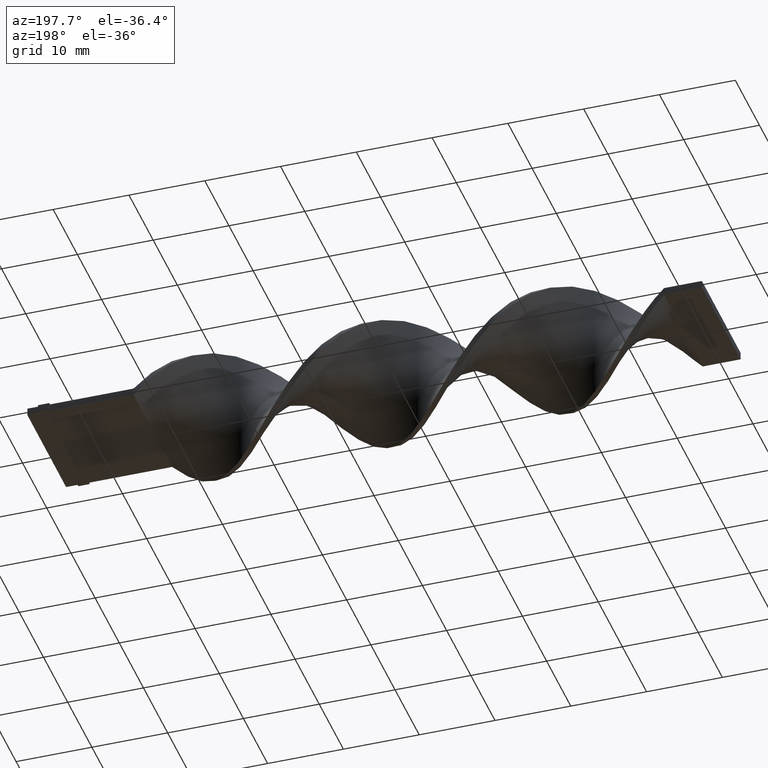
[diagram: clean part render]
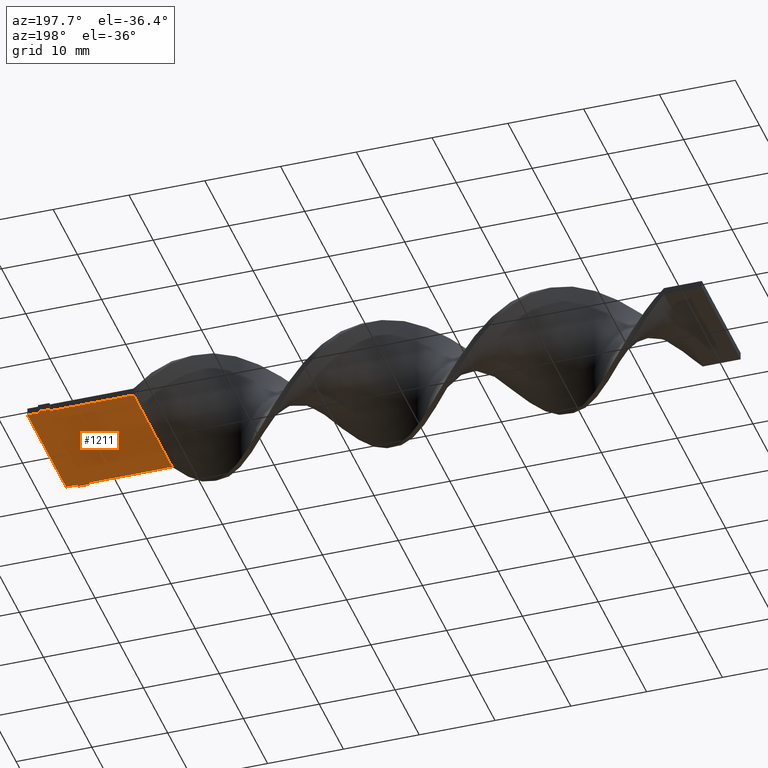
[diagram: same view with one face highlighted and labeled with its STEP entity id]
A machine part, auxiliary view. The second image highlights one B-rep face of the part: STEP entity #1211.
In plain terms, the highlighted planar face has unit normal (0, 0, 1).
Its self-contained STEP definition (entity closure, byte-faithful):
#34 = EDGE_CURVE ( 'NONE', #1388, #1496, #285, .T. ) ;
#38 = DIRECTION ( 'NONE',  ( -1.000000000000000000, 0.000000000000000000, 0.000000000000000000 ) ) ;
#94 = AXIS2_PLACEMENT_3D ( 'NONE', #1433, #436, #430 ) ;
#111 = CARTESIAN_POINT ( 'NONE',  ( -1.499999999999993783, -8.300000000000000711, -0.5000000000000000000 ) ) ;
#115 = VERTEX_POINT ( 'NONE', #1442 ) ;
#117 = VECTOR ( 'NONE', #1589, 1000.000000000000000 ) ;
#125 = CARTESIAN_POINT ( 'NONE',  ( -13.99999999999999822, 7.999999999999998224, -0.5000000000000000000 ) ) ;
#126 = ORIENTED_EDGE ( 'NONE', *, *, #1379, .F. ) ;
#132 = CARTESIAN_POINT ( 'NONE',  ( -2.999999999999995115, 8.000000000000000000, -0.5000000000000000000 ) ) ;
#133 = CARTESIAN_POINT ( 'NONE',  ( -1.499999999999995781, 8.000000000000000000, -0.5000000000000000000 ) ) ;
#138 = VERTEX_POINT ( 'NONE', #1112 ) ;
#151 = CARTESIAN_POINT ( 'NONE',  ( -13.99999999999999645, -8.000000000000001776, -0.5000000000000000000 ) ) ;
#165 = CARTESIAN_POINT ( 'NONE',  ( -1.499999999999995781, 8.000000000000000000, -0.5000000000000000000 ) ) ;
#196 = ORIENTED_EDGE ( 'NONE', *, *, #672, .F. ) ;
#215 = ORIENTED_EDGE ( 'NONE', *, *, #629, .F. ) ;
#217 = VECTOR ( 'NONE', #1300, 1000.000000000000000 ) ;
#241 = EDGE_LOOP ( 'NONE', ( #1030, #1404, #1583, #531, #1321, #215, #1002, #126, #196, #567, #251, #824 ) ) ;
#251 = ORIENTED_EDGE ( 'NONE', *, *, #34, .F. ) ;
#253 = VERTEX_POINT ( 'NONE', #613 ) ;
#269 = EDGE_CURVE ( 'NONE', #253, #1388, #856, .T. ) ;
#285 = LINE ( 'NONE', #543, #1214 ) ;
#290 = EDGE_CURVE ( 'NONE', #115, #450, #329, .T. ) ;
#305 = PLANE ( 'NONE',  #94 ) ;
#325 = VECTOR ( 'NONE', #605, 1000.000000000000000 ) ;
#329 = LINE ( 'NONE', #1329, #1269 ) ;
#379 = CARTESIAN_POINT ( 'NONE',  ( -1.499999999999993783, -8.000000000000000000, -0.5000000000000000000 ) ) ;
#404 = DIRECTION ( 'NONE',  ( 0.000000000000000000, 1.000000000000000000, 0.000000000000000000 ) ) ;
#409 = DIRECTION ( 'NONE',  ( -1.000000000000000000, -1.577021341797097067E-16, 0.000000000000000000 ) ) ;
#412 = LINE ( 'NONE', #379, #463 ) ;
#426 = DIRECTION ( 'NONE',  ( -1.000000000000000000, 0.000000000000000000, 0.000000000000000000 ) ) ;
#430 = DIRECTION ( 'NONE',  ( 1.000000000000000000, 0.000000000000000000, -0.000000000000000000 ) ) ;
#436 = DIRECTION ( 'NONE',  ( 0.000000000000000000, 0.000000000000000000, 1.000000000000000000 ) ) ;
#450 = VERTEX_POINT ( 'NONE', #864 ) ;
#463 = VECTOR ( 'NONE', #1266, 1000.000000000000000 ) ;
#470 = EDGE_CURVE ( 'NONE', #743, #1471, #412, .T. ) ;
#479 = CARTESIAN_POINT ( 'NONE',  ( -1.959434878635765526E-15, 8.000000000000000000, -0.5000000000000000000 ) ) ;
#510 = VECTOR ( 'NONE', #1473, 1000.000000000000000 ) ;
#515 = EDGE_CURVE ( 'NONE', #1471, #115, #1518, .T. ) ;
#531 = ORIENTED_EDGE ( 'NONE', *, *, #290, .T. ) ;
#533 = VERTEX_POINT ( 'NONE', #1213 ) ;
#543 = CARTESIAN_POINT ( 'NONE',  ( -1.959434878635765526E-15, 8.000000000000000000, -0.5000000000000000000 ) ) ;
#558 = EDGE_CURVE ( 'NONE', #533, #1265, #1598, .T. ) ;
#567 = ORIENTED_EDGE ( 'NONE', *, *, #1065, .F. ) ;
#604 = LINE ( 'NONE', #1111, #117 ) ;
#605 = DIRECTION ( 'NONE',  ( -1.224646799147353207E-16, 1.000000000000000000, 0.000000000000000000 ) ) ;
#613 = CARTESIAN_POINT ( 'NONE',  ( -3.851859888774471706E-31, -8.000000000000000000, -0.5000000000000000000 ) ) ;
#615 = CARTESIAN_POINT ( 'NONE',  ( -13.99999999999999822, 7.999999999999998224, -0.5000000000000000000 ) ) ;
#629 = EDGE_CURVE ( 'NONE', #1265, #1121, #1348, .T. ) ;
#635 = VECTOR ( 'NONE', #404, 1000.000000000000000 ) ;
#650 = CARTESIAN_POINT ( 'NONE',  ( -1.499999999999995781, 8.300000000000000711, -0.5000000000000000000 ) ) ;
#672 = EDGE_CURVE ( 'NONE', #731, #138, #604, .T. ) ;
#676 = LINE ( 'NONE', #1415, #217 ) ;
#722 = DIRECTION ( 'NONE',  ( -1.000000000000000000, -1.577021341797097067E-16, 0.000000000000000000 ) ) ;
#731 = VERTEX_POINT ( 'NONE', #650 ) ;
#743 = VERTEX_POINT ( 'NONE', #1516 ) ;
#824 = ORIENTED_EDGE ( 'NONE', *, *, #269, .F. ) ;
#856 = LINE ( 'NONE', #1224, #325 ) ;
#864 = CARTESIAN_POINT ( 'NONE',  ( -2.999999999999993339, -8.000000000000000000, -0.5000000000000000000 ) ) ;
#898 = CARTESIAN_POINT ( 'NONE',  ( -1.499999999999993783, -8.300000000000000711, -0.5000000000000000000 ) ) ;
#962 = LINE ( 'NONE', #1104, #510 ) ;
#965 = EDGE_CURVE ( 'NONE', #253, #743, #676, .T. ) ;
#1002 = ORIENTED_EDGE ( 'NONE', *, *, #558, .F. ) ;
#1030 = ORIENTED_EDGE ( 'NONE', *, *, #965, .T. ) ;
#1065 = EDGE_CURVE ( 'NONE', #1496, #731, #1498, .T. ) ;
#1082 = DIRECTION ( 'NONE',  ( 1.445602896647339706E-15, 1.000000000000000000, 0.000000000000000000 ) ) ;
#1104 = CARTESIAN_POINT ( 'NONE',  ( -2.999999999999995559, 8.300000000000000711, -0.5000000000000000000 ) ) ;
#1111 = CARTESIAN_POINT ( 'NONE',  ( -1.499999999999995781, 8.300000000000000711, -0.5000000000000000000 ) ) ;
#1112 = CARTESIAN_POINT ( 'NONE',  ( -2.999999999999995559, 8.300000000000000711, -0.5000000000000000000 ) ) ;
#1117 = VECTOR ( 'NONE', #38, 1000.000000000000000 ) ;
#1121 = VERTEX_POINT ( 'NONE', #151 ) ;
#1126 = DIRECTION ( 'NONE',  ( 1.084202172485504434E-16, -1.000000000000000000, 0.000000000000000000 ) ) ;
#1128 = LINE ( 'NONE', #1506, #1291 ) ;
#1164 = VECTOR ( 'NONE', #1126, 1000.000000000000000 ) ;
#1211 = ADVANCED_FACE ( 'NONE', ( #1428 ), #305, .F. ) ;
#1213 = CARTESIAN_POINT ( 'NONE',  ( -2.999999999999995115, 8.000000000000000000, -0.5000000000000000000 ) ) ;
#1214 = VECTOR ( 'NONE', #426, 1000.000000000000000 ) ;
#1224 = CARTESIAN_POINT ( 'NONE',  ( -3.851859888774471706E-31, -8.000000000000000000, -0.5000000000000000000 ) ) ;
#1265 = VERTEX_POINT ( 'NONE', #615 ) ;
#1266 = DIRECTION ( 'NONE',  ( 0.000000000000000000, -1.000000000000000000, 0.000000000000000000 ) ) ;
#1269 = VECTOR ( 'NONE', #1082, 1000.000000000000000 ) ;
#1291 = VECTOR ( 'NONE', #409, 1000.000000000000000 ) ;
#1300 = DIRECTION ( 'NONE',  ( -1.000000000000000000, 0.000000000000000000, 0.000000000000000000 ) ) ;
#1310 = VECTOR ( 'NONE', #722, 1000.000000000000000 ) ;
#1321 = ORIENTED_EDGE ( 'NONE', *, *, #1595, .T. ) ;
#1329 = CARTESIAN_POINT ( 'NONE',  ( -2.999999999999993339, -8.300000000000000711, -0.5000000000000000000 ) ) ;
#1348 = LINE ( 'NONE', #125, #1164 ) ;
#1379 = EDGE_CURVE ( 'NONE', #138, #533, #962, .T. ) ;
#1388 = VERTEX_POINT ( 'NONE', #479 ) ;
#1404 = ORIENTED_EDGE ( 'NONE', *, *, #470, .T. ) ;
#1415 = CARTESIAN_POINT ( 'NONE',  ( -3.851859888774471706E-31, -8.000000000000000000, -0.5000000000000000000 ) ) ;
#1428 = FACE_OUTER_BOUND ( 'NONE', #241, .T. ) ;
#1433 = CARTESIAN_POINT ( 'NONE',  ( 0.000000000000000000, 0.000000000000000000, -0.5000000000000000000 ) ) ;
#1442 = CARTESIAN_POINT ( 'NONE',  ( -2.999999999999993339, -8.300000000000000711, -0.5000000000000000000 ) ) ;
#1471 = VERTEX_POINT ( 'NONE', #111 ) ;
#1473 = DIRECTION ( 'NONE',  ( 1.445602896647339706E-15, -1.000000000000000000, 0.000000000000000000 ) ) ;
#1496 = VERTEX_POINT ( 'NONE', #133 ) ;
#1498 = LINE ( 'NONE', #165, #635 ) ;
#1506 = CARTESIAN_POINT ( 'NONE',  ( -2.999999999999993339, -8.000000000000000000, -0.5000000000000000000 ) ) ;
#1516 = CARTESIAN_POINT ( 'NONE',  ( -1.499999999999993783, -8.000000000000000000, -0.5000000000000000000 ) ) ;
#1518 = LINE ( 'NONE', #898, #1117 ) ;
#1583 = ORIENTED_EDGE ( 'NONE', *, *, #515, .T. ) ;
#1589 = DIRECTION ( 'NONE',  ( -1.000000000000000000, 0.000000000000000000, 0.000000000000000000 ) ) ;
#1595 = EDGE_CURVE ( 'NONE', #450, #1121, #1128, .T. ) ;
#1598 = LINE ( 'NONE', #132, #1310 ) ;